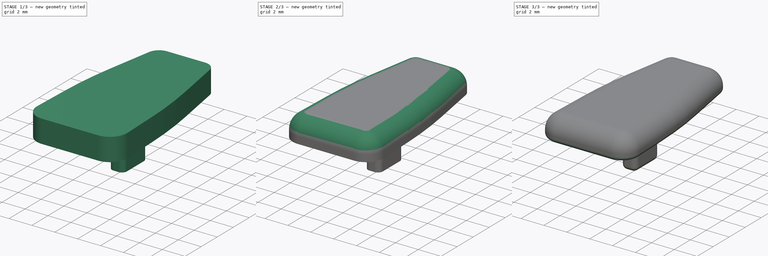
[diagram: build sequence overview — one tinted view per stage of 3, left to right]
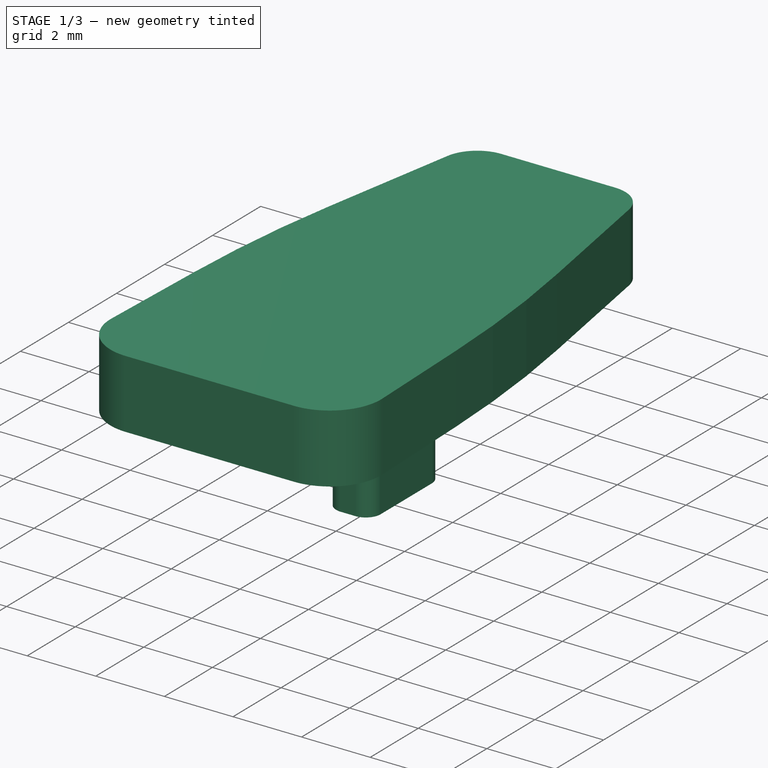
[diagram: stage 1 of 3 — iso view after this stage's code; geometry added in this stage tinted green]
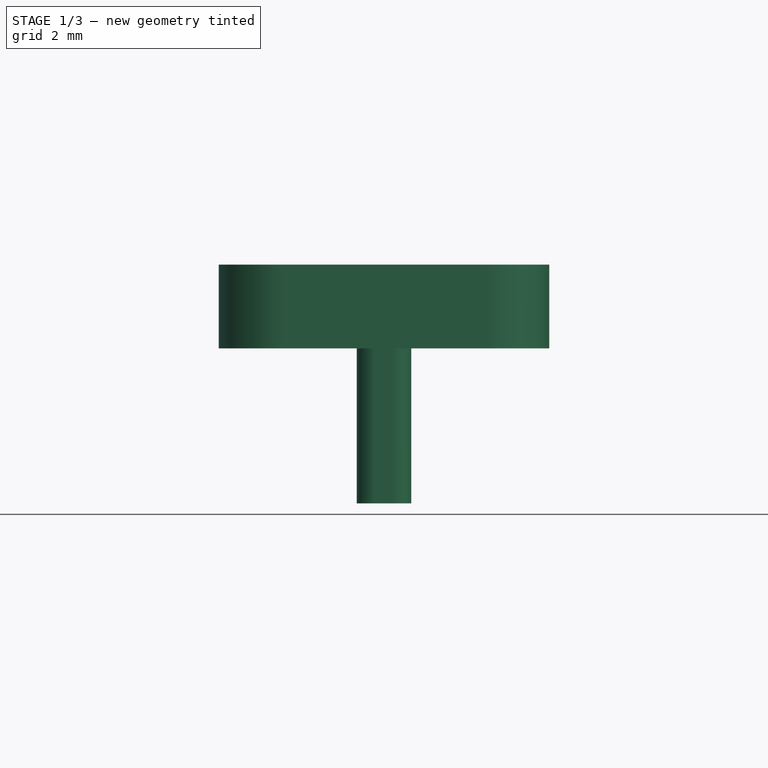
[diagram: stage 1 of 3 — front view after this stage's code; geometry added in this stage tinted green]
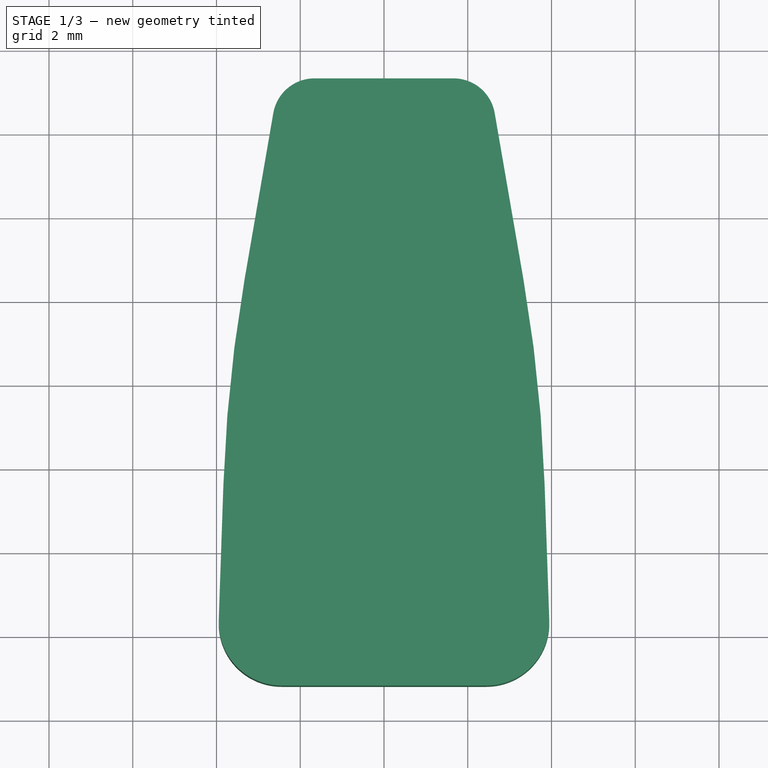
[diagram: stage 1 of 3 — top view after this stage's code; geometry added in this stage tinted green]
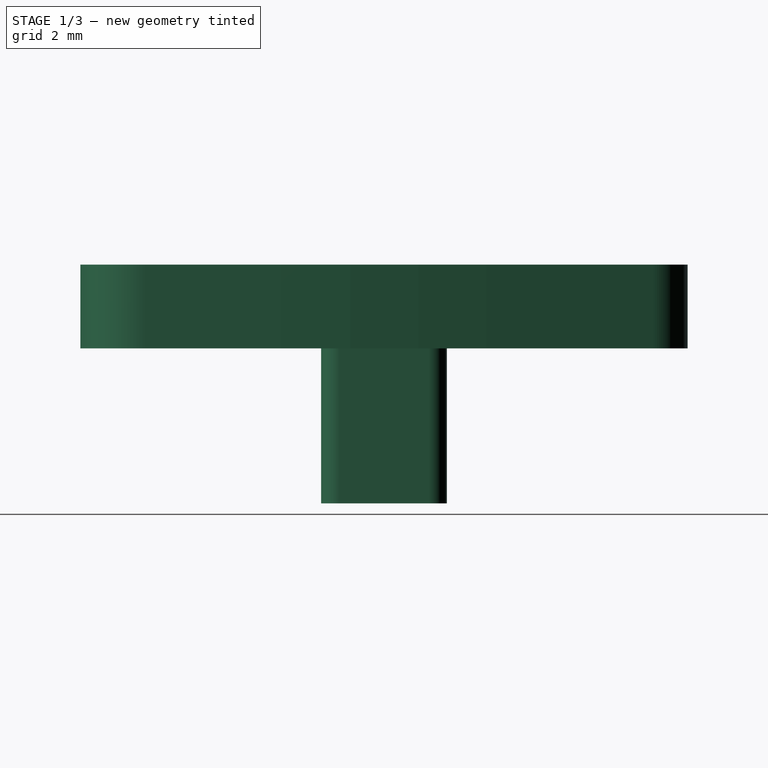
[diagram: stage 1 of 3 — right view after this stage's code; geometry added in this stage tinted green]
FCSTD DOCUMENT  (FreeCAD 0.21R33771 (Git))
Label: GlassNoseRest
License: All rights reserved
LicenseURL: http://en.wikipedia.org/wiki/All_rights_reserved
objects: Sketcher::SketchObject×3, PartDesign::Fillet×3, PartDesign::Pad×2, PartDesign::Body×1
note: 14 computed .brp shape members not serialized (recipe doc carries the construction recipe); baked Part::Feature solids carry a one-line shape summary decoded from their .brp

FEATURE [Sketcher::SketchObject] Sketch  label="Template"
  FullyConstrained = true
  MapMode = 5
  Support = -> [XY_Plane]
  sketch-geometry (43):
    g0: LineSegment StartX=-0.216667 StartY=1.5 StartZ=0 EndX=0.216667 EndY=1.5 EndZ=0
    g1: LineSegment StartX=0.65 StartY=1.06667 StartZ=0 EndX=0.65 EndY=-1.06667 EndZ=0
    g2: LineSegment StartX=0.216667 StartY=-1.5 StartZ=0 EndX=-0.216667 EndY=-1.5 EndZ=0
    g3: LineSegment StartX=-0.65 StartY=-1.06667 StartZ=0 EndX=-0.65 EndY=1.06667 EndZ=0
    g4: ArcOfCircle CenterX=-0.216667 CenterY=1.06667 CenterZ=0 NormalX=0 NormalY=0 NormalZ=1 AngleXU=0 Radius=0.433333 StartAngle=1.5708 EndAngle=3.14159
    g5: GeomPoint X=-0.65 Y=1.5 Z=0
    g6: ArcOfCircle CenterX=0.216667 CenterY=1.06667 CenterZ=0 NormalX=0 NormalY=0 NormalZ=1 AngleXU=0 Radius=0.433333 StartAngle=1e-16 EndAngle=1.5708
    g7: GeomPoint X=0.65 Y=1.5 Z=0
    g8: ArcOfCircle CenterX=0.216667 CenterY=-1.06667 CenterZ=0 NormalX=0 NormalY=0 NormalZ=1 AngleXU=0 Radius=0.433333 StartAngle=4.71239 EndAngle=6.28319
    g9: GeomPoint X=0.65 Y=-1.5 Z=0
    g10: ArcOfCircle CenterX=-0.216667 CenterY=-1.06667 CenterZ=0 NormalX=0 NormalY=0 NormalZ=1 AngleXU=0 Radius=0.433333 StartAngle=3.14159 EndAngle=4.71239
    g11: GeomPoint X=-0.65 Y=-1.5 Z=0
    g12: LineSegment StartX=-0.65 StartY=1.06667 StartZ=0 EndX=-0.216667 EndY=1.06667 EndZ=0
    g13: LineSegment StartX=-0.216667 StartY=1.06667 StartZ=0 EndX=0.216667 EndY=1.06667 EndZ=0
    g14: LineSegment StartX=0.216667 StartY=1.06667 StartZ=0 EndX=0.65 EndY=1.06667 EndZ=0
    g15: GeomPoint X=0 Y=0 Z=0
    g16: LineSegment StartX=-3.83476 StartY=-2.44657 StartZ=0 EndX=-3.94662 EndY=-5.69843 EndZ=0
    g17: LineSegment StartX=-2.44751 StartY=-7.25 StartZ=0 EndX=2.44751 EndY=-7.25 EndZ=0
    g18: LineSegment StartX=3.94662 StartY=-5.69843 StartZ=0 EndX=3.83476 EndY=-2.44657 EndZ=0
    g19: LineSegment StartX=3.33016 StartY=2.44657 StartZ=0 EndX=2.64339 EndY=6.4203 EndZ=0
    g20: LineSegment StartX=1.658 StartY=7.25 StartZ=0 EndX=-1.658 EndY=7.25 EndZ=0
    g21: LineSegment StartX=-2.64339 StartY=6.4203 StartZ=0 EndX=-3.33016 EndY=2.44657 EndZ=0
    g22: ArcOfCircle CenterX=-2.44751 CenterY=-5.75 CenterZ=0 NormalX=0 NormalY=0 NormalZ=1 AngleXU=0 Radius=1.5 StartAngle=3.10721 EndAngle=4.71239
    g23: GeomPoint X=-4 Y=-7.25 Z=0
    g24: ArcOfCircle CenterX=2.44751 CenterY=-5.75 CenterZ=0 NormalX=0 NormalY=0 NormalZ=1 AngleXU=0 Radius=1.5 StartAngle=4.71239 EndAngle=6.31757
    g25: GeomPoint X=4 Y=-7.25 Z=0
    g26: ArcOfCircle CenterX=-32.144 CenterY=-3.68427 CenterZ=0 NormalX=0 NormalY=0 NormalZ=1 AngleXU=0 Radius=36 StartAngle=0.0343872 EndAngle=0.171135
    g27: GeomPoint X=3.75 Y=0.0172778 Z=0
    g28: ArcOfCircle CenterX=32.144 CenterY=-3.68427 CenterZ=0 NormalX=0 NormalY=0 NormalZ=1 AngleXU=0 Radius=36 StartAngle=2.97046 EndAngle=3.10721
    g29: GeomPoint X=-3.75 Y=0.0172778 Z=0
    g30: ArcOfCircle CenterX=-1.658 CenterY=6.25 CenterZ=0 NormalX=0 NormalY=0 NormalZ=1 AngleXU=0 Radius=1 StartAngle=1.5708 EndAngle=2.97046
    g31: GeomPoint X=-2.5 Y=7.25 Z=0
    g32: ArcOfCircle CenterX=1.658 CenterY=6.25 CenterZ=0 NormalX=0 NormalY=0 NormalZ=1 AngleXU=0 Radius=1 StartAngle=0.171135 EndAngle=1.5708
    g33: GeomPoint X=2.5 Y=7.25 Z=0
    g34: LineSegment StartX=-0.65 StartY=-0.5 StartZ=0 EndX=0.65 EndY=-0.5 EndZ=0
    g35: LineSegment StartX=0 StartY=7.25 StartZ=0 EndX=0 EndY=1.5 EndZ=0
    g36: LineSegment StartX=0 StartY=1.5 StartZ=0 EndX=0 EndY=0.5 EndZ=0
    g37: LineSegment StartX=0 StartY=0.5 StartZ=0 EndX=0 EndY=-0.5 EndZ=0
    g38: LineSegment StartX=0 StartY=-0.5 StartZ=0 EndX=0 EndY=-1.5 EndZ=0
    g39: LineSegment StartX=0 StartY=-1.5 StartZ=0 EndX=0 EndY=-7.25 EndZ=0
    g40: LineSegment StartX=0 StartY=0 StartZ=0 EndX=-3.83476 EndY=0 EndZ=0
    g41: LineSegment StartX=-3.33016 StartY=2.44657 StartZ=0 EndX=-3.33016 EndY=0 EndZ=0
    g42: LineSegment StartX=-3.83476 StartY=-2.44657 StartZ=0 EndX=-3.83476 EndY=0 EndZ=0
  constraints (102):
    c: Horizontal(g0)
    c: Horizontal(g2)
    c: Vertical(g1)
    c: Vertical(g3)
    c: DistanceY(g11,g5) = 3
    c: DistanceX(g5,g7) = 1.3
    c: PointOnObject(g5,g0)
    c: PointOnObject(g5,g3)
    c: Tangent(g0,g4) = 1.5708
    c: Tangent(g3,g4) = 1.5708
    c: PointOnObject(g7,g0)
    c: PointOnObject(g7,g1)
    c: Tangent(g0,g6) = 1.5708
    c: Tangent(g1,g6) = 1.5708
    c: PointOnObject(g9,g1)
    c: PointOnObject(g9,g2)
    c: Tangent(g1,g8) = 1.5708
    c: Tangent(g2,g8) = 1.5708
    c: PointOnObject(g11,g2)
    c: PointOnObject(g11,g3)
    c: Tangent(g2,g10) = 1.5708
    c: Tangent(g3,g10) = 1.5708
    c: Equal(g4,g6)
    c: Equal(g6,g8)
    c: Equal(g8,g10)
    c: Coincident(g12,g3)
    c: Coincident(g12,g4)
    c: Coincident(g13,g4)
    c: Coincident(g13,g6)
    c: Coincident(g14,g6)
    c: Coincident(g14,g1)
    c: Equal(g14,g13)
    c: Symmetric(g11,g7,g15)
    c: Horizontal(g17)
    c: Horizontal(g20)
    c: DistanceX(g23,g25) = 8
    c: DistanceY(g23,g31) = 14.5
    c: DistanceX(g31,g33) = 5
    c: DistanceX(g29,g27) = 7.5
    c: PointOnObject(g23,g16)
    c: PointOnObject(g23,g17)
    c: Tangent(g16,g22) = -1.5708
    c: Tangent(g17,g22) = -1.5708
    c: PointOnObject(g25,g17)
    c: PointOnObject(g25,g18)
    c: Tangent(g17,g24) = -1.5708
    c: Tangent(g18,g24) = -1.5708
    c: PointOnObject(g27,g18)
    c: PointOnObject(g27,g19)
    c: Tangent(g18,g26) = -1.5708
    c: Tangent(g19,g26) = -1.5708
    c: PointOnObject(g29,g16)
    c: PointOnObject(g29,g21)
    c: Tangent(g16,g28) = -1.5708
    c: Tangent(g21,g28) = -1.5708
    c: PointOnObject(g31,g20)
    c: PointOnObject(g31,g21)
    c: Tangent(g20,g30) = -1.5708
    c: Tangent(g21,g30) = -1.5708
    c: PointOnObject(g33,g19)
    c: Tangent(g19,g32) = -1.5708
    c: Tangent(g20,g32) = -1.5708
    c: Equal(g26,g28)
    c: Radius(g28) = 36
    c: Equal(g22,g24)
    c: Radius(g22) = 1.5
    c: Equal(g30,g32)
    c: Radius(g32) = 1
    c: PointOnObject(g34,g3)
    c: PointOnObject(g34,g1)
    c: Horizontal(g34)
    c: Coincident(g35,g36)
    c: Vertical(g35)
    c: PointOnObject(g15,g35)
    c: Coincident(g36,g37)
    c: Vertical(g36)
    c: Coincident(g37,g38)
    c: Vertical(g37)
    c: Coincident(g38,g39)
    c: Vertical(g38)
    c: Vertical(g39)
    c: PointOnObject(g38,g2)
    c: PointOnObject(g35,g0)
    c: Equal(g38,g37)
    c: Equal(g37,g36)
    c: PointOnObject(g37,g34)
    c: Equal(g35,g39)
    c: Symmetric(g17,g17,g39)
    c: Symmetric(g20,g20,g35)
    c: Coincident(g40,g15)
    c: Horizontal(g40)
    c: Coincident(g41,g21)
    c: PointOnObject(g41,g40)
    c: Vertical(g41)
    c: Coincident(g42,g16)
    c: Vertical(g42)
    c: Coincident(g40,g42)
    c: Equal(g41,g42)
    c: Equal(g21,g19)
    c: Equal(g18,g16)
    c: PointOnObject(g33,g20)
    c: Coincident(g-1,g15)
FEATURE [Sketcher::SketchObject] Sketch001
  ExternalGeometry = -> [Sketch]
  FullyConstrained = true
  MapMode = 5
  Support = -> [XY_Plane]
  sketch-geometry (8):
    g0: ArcOfCircle CenterX=-0.216667 CenterY=1.06667 CenterZ=0 NormalX=0 NormalY=0 NormalZ=1 AngleXU=0 Radius=0.433333 StartAngle=1.5708 EndAngle=3.14159
    g1: ArcOfCircle CenterX=0.216667 CenterY=1.06667 CenterZ=0 NormalX=0 NormalY=0 NormalZ=1 AngleXU=0 Radius=0.433333 StartAngle=1.1e-15 EndAngle=1.5708
    g2: ArcOfCircle CenterX=0.216667 CenterY=-1.06667 CenterZ=0 NormalX=0 NormalY=0 NormalZ=1 AngleXU=0 Radius=0.433333 StartAngle=4.71239 EndAngle=6.28319
    g3: ArcOfCircle CenterX=-0.216667 CenterY=-1.06667 CenterZ=0 NormalX=0 NormalY=0 NormalZ=1 AngleXU=0 Radius=0.433333 StartAngle=3.14159 EndAngle=4.71239
    g4: LineSegment StartX=-0.216667 StartY=1.5 StartZ=0 EndX=0.216667 EndY=1.5 EndZ=0
    g5: LineSegment StartX=-0.65 StartY=1.06667 StartZ=0 EndX=-0.65 EndY=-1.06667 EndZ=0
    g6: LineSegment StartX=0.65 StartY=1.06667 StartZ=0 EndX=0.65 EndY=-1.06667 EndZ=0
    g7: LineSegment StartX=0.216667 StartY=-1.5 StartZ=0 EndX=-0.216667 EndY=-1.5 EndZ=0
  constraints (20):
    c: Coincident(g0,g-4)
    c: Coincident(g0,g-4)
    c: Coincident(g1,g-3)
    c: Coincident(g1,g-3)
    c: Coincident(g2,g-6)
    c: Coincident(g2,g-6)
    c: Coincident(g3,g-5)
    c: Coincident(g3,g-5)
    c: Equal(g3,g-5)
    c: Equal(g2,g-6)
    c: Equal(g1,g-3)
    c: Equal(g0,g-4)
    c: Coincident(g4,g0)
    c: Coincident(g4,g1)
    c: Coincident(g5,g0)
    c: Coincident(g5,g3)
    c: Coincident(g6,g1)
    c: Coincident(g6,g2)
    c: Coincident(g7,g2)
    c: Coincident(g7,g3)
FEATURE [PartDesign::Pad] Pad
  Direction = (0,0,1)
  Length = 3.7
  Length2 = 10
  Profile = -> Sketch001
  ReferenceAxis = -> Sketch001 [N_Axis]
  Type = 0
FEATURE [Sketcher::SketchObject] Sketch002
  AttachmentOffset = pos=(0,0,3.7) rot=(0,0,1;0rad)
  ExternalGeometry = -> [Sketch]
  FullyConstrained = true
  MapMode = 5
  Placement = pos=(0,0,3.7) rot=(0,0,1;0rad)
  Support = -> [XY_Plane]
  expr: .AttachmentOffset.Base.z = <<Sketch001>>.AttachmentOffset.Base.z + <<Pad>>.Length
  sketch-geometry (12):
    g0: ArcOfCircle CenterX=-1.658 CenterY=6.25 CenterZ=0 NormalX=0 NormalY=0 NormalZ=1 AngleXU=0 Radius=1 StartAngle=1.5708 EndAngle=2.97046
    g1: ArcOfCircle CenterX=1.658 CenterY=6.25 CenterZ=0 NormalX=0 NormalY=0 NormalZ=1 AngleXU=0 Radius=1 StartAngle=0.171135 EndAngle=1.5708
    g2: ArcOfCircle CenterX=-32.144 CenterY=-3.68427 CenterZ=0 NormalX=0 NormalY=0 NormalZ=1 AngleXU=0 Radius=36 StartAngle=0.0343872 EndAngle=0.171135
    g3: ArcOfCircle CenterX=32.144 CenterY=-3.68427 CenterZ=0 NormalX=0 NormalY=0 NormalZ=1 AngleXU=0 Radius=36 StartAngle=2.97046 EndAngle=3.10721
    g4: ArcOfCircle CenterX=-2.44751 CenterY=-5.75 CenterZ=0 NormalX=0 NormalY=0 NormalZ=1 AngleXU=0 Radius=1.5 StartAngle=3.10721 EndAngle=4.71239
    g5: ArcOfCircle CenterX=2.44751 CenterY=-5.75 CenterZ=0 NormalX=0 NormalY=0 NormalZ=1 AngleXU=0 Radius=1.5 StartAngle=4.71239 EndAngle=6.31757
    g6: LineSegment StartX=-1.658 StartY=7.25 StartZ=0 EndX=1.658 EndY=7.25 EndZ=0
    g7: LineSegment StartX=2.64339 StartY=6.4203 StartZ=0 EndX=3.33016 EndY=2.44657 EndZ=0
    g8: LineSegment StartX=3.83476 StartY=-2.44657 StartZ=0 EndX=3.94662 EndY=-5.69843 EndZ=0
    g9: LineSegment StartX=2.44751 StartY=-7.25 StartZ=0 EndX=-2.44751 EndY=-7.25 EndZ=0
    g10: LineSegment StartX=-3.94662 StartY=-5.69843 StartZ=0 EndX=-3.83476 EndY=-2.44657 EndZ=0
    g11: LineSegment StartX=-3.33016 StartY=2.44657 StartZ=0 EndX=-2.64339 EndY=6.4203 EndZ=0
  constraints (30):
    c: Coincident(g0,g-3)
    c: Coincident(g0,g-3)
    c: Coincident(g1,g-4)
    c: Coincident(g1,g-4)
    c: Coincident(g2,g-5)
    c: Coincident(g2,g-5)
    c: Coincident(g3,g-8)
    c: Coincident(g3,g-8)
    c: Coincident(g4,g-7)
    c: Coincident(g4,g-7)
    c: Coincident(g5,g-6)
    c: Coincident(g5,g-6)
    c: Equal(g-6,g5)
    c: Equal(g-7,g4)
    c: Equal(g-5,g2)
    c: Equal(g-8,g3)
    c: Equal(g-3,g0)
    c: Equal(g-4,g1)
    c: Coincident(g6,g0)
    c: Coincident(g6,g1)
    c: Coincident(g7,g1)
    c: Coincident(g7,g2)
    c: Coincident(g8,g2)
    c: Coincident(g8,g5)
    c: Coincident(g9,g5)
    c: Coincident(g9,g4)
    c: Coincident(g10,g4)
    c: Coincident(g10,g3)
    c: Coincident(g11,g3)
    c: Coincident(g11,g0)
FEATURE [PartDesign::Pad] Pad001
  BaseFeature = -> Pad
  Direction = (0,0,1)
  Length = 2
  Length2 = 10
  Profile = -> Sketch002
  ReferenceAxis = -> Sketch002 [N_Axis]
  Type = 0
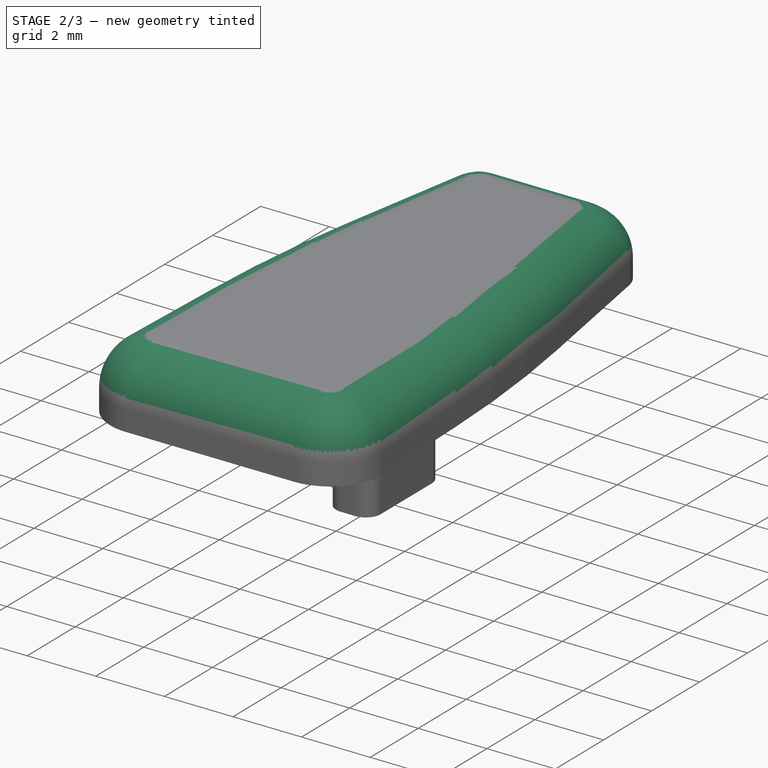
[diagram: stage 2 of 3 — iso view after this stage's code; geometry added in this stage tinted green]
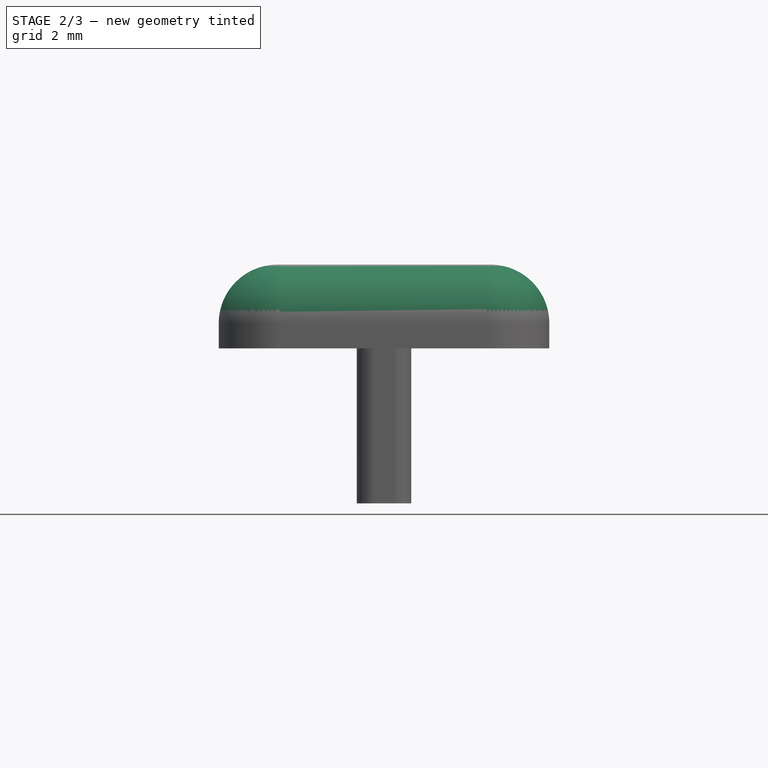
[diagram: stage 2 of 3 — front view after this stage's code; geometry added in this stage tinted green]
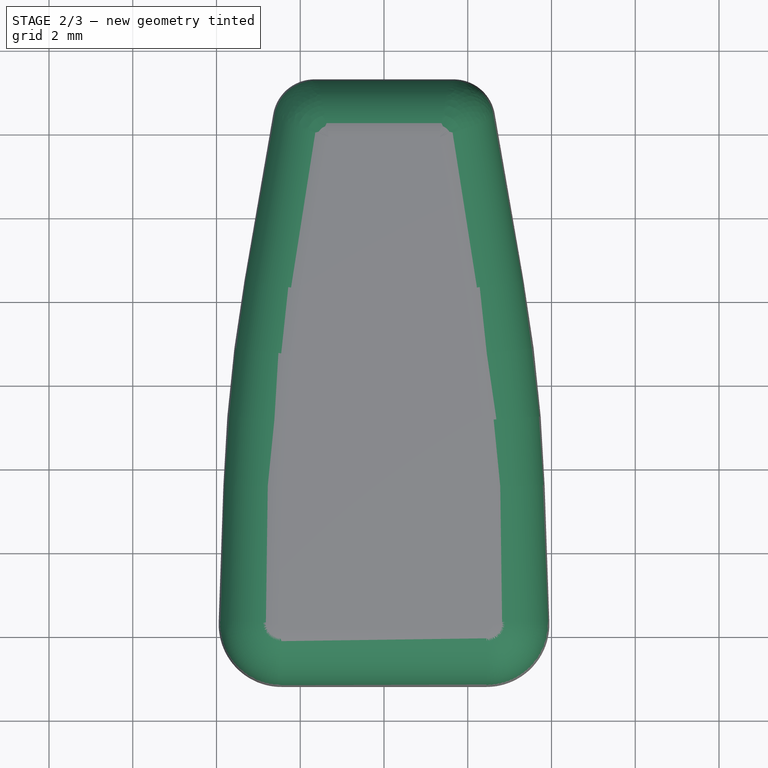
[diagram: stage 2 of 3 — top view after this stage's code; geometry added in this stage tinted green]
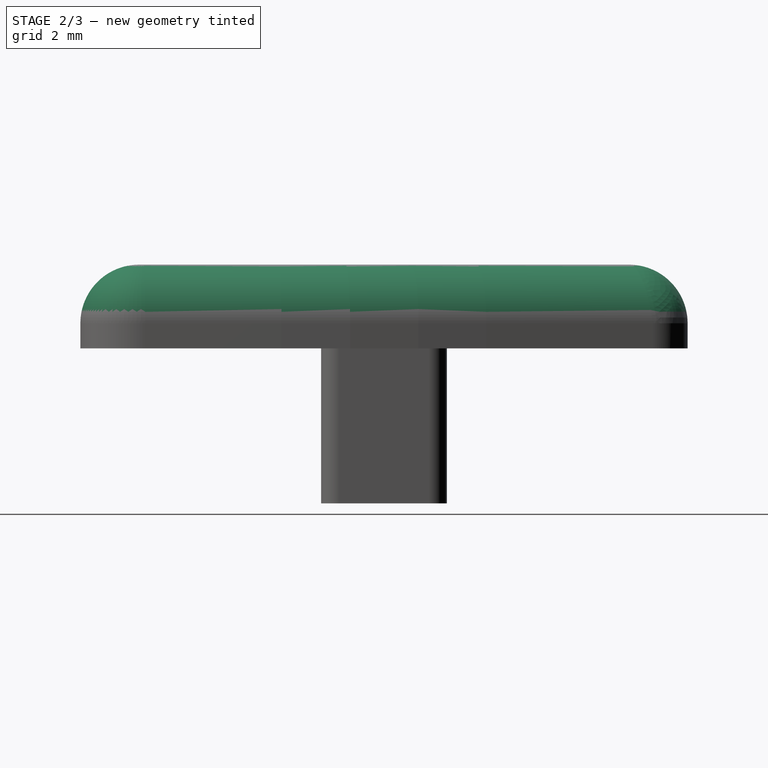
[diagram: stage 2 of 3 — right view after this stage's code; geometry added in this stage tinted green]
FEATURE [PartDesign::Fillet] Fillet
  Base = -> Pad001 [Face5]
  BaseFeature = -> Pad001
  Radius = 1.4
  SupportTransform = false
  UseAllEdges = false
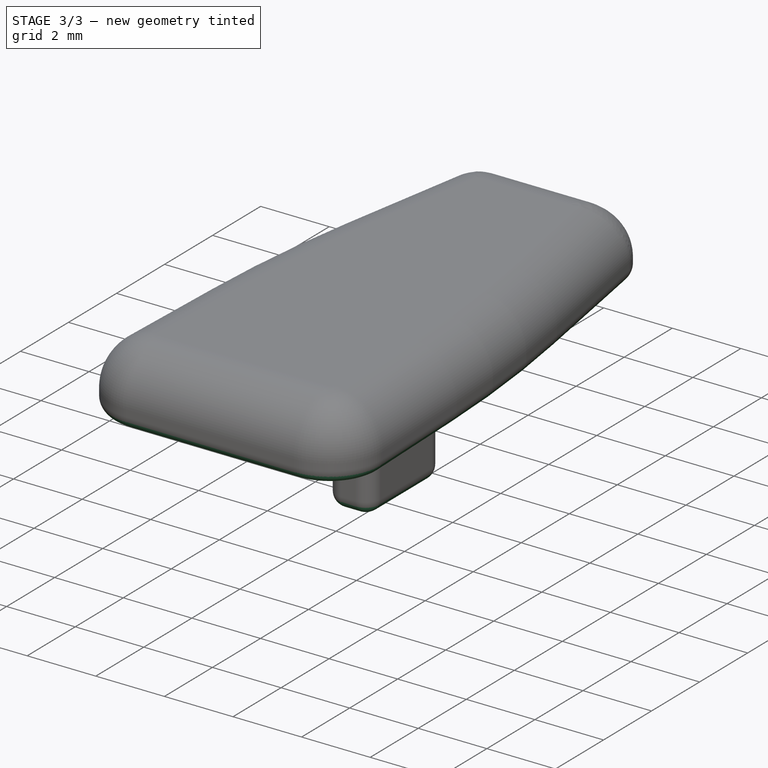
[diagram: stage 3 of 3 — iso view after this stage's code; geometry added in this stage tinted green]
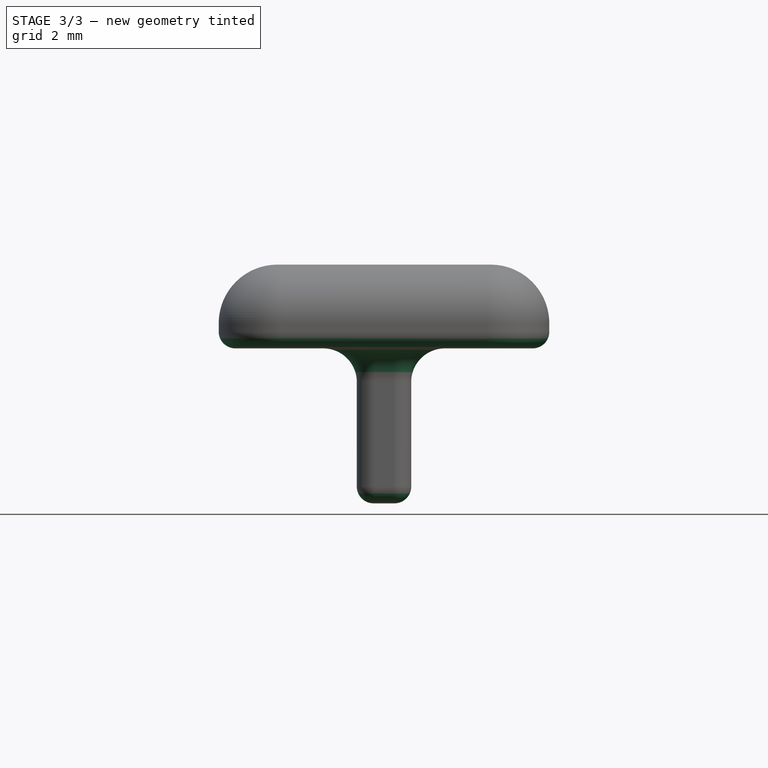
[diagram: stage 3 of 3 — front view after this stage's code; geometry added in this stage tinted green]
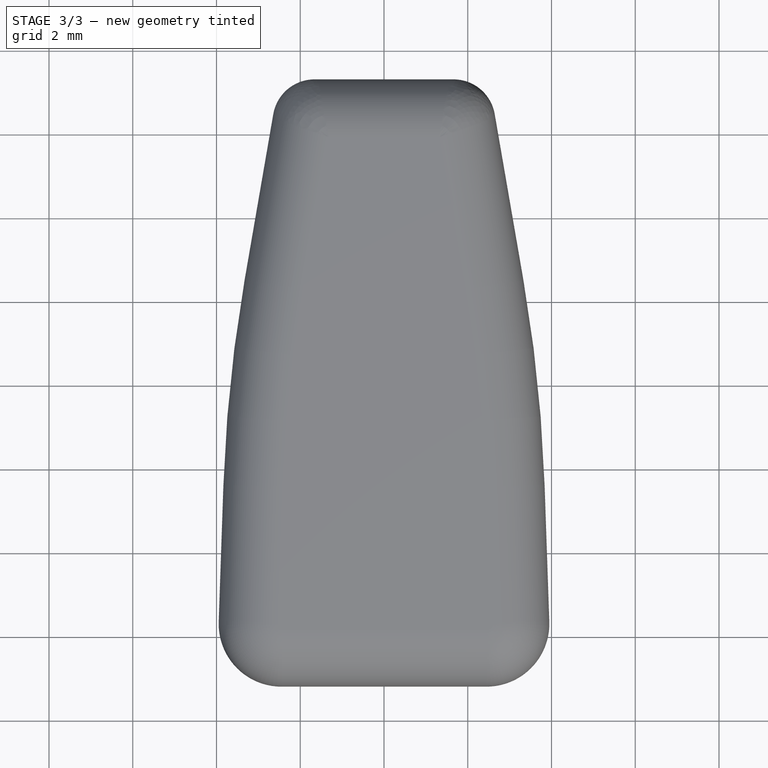
[diagram: stage 3 of 3 — top view after this stage's code; geometry added in this stage tinted green]
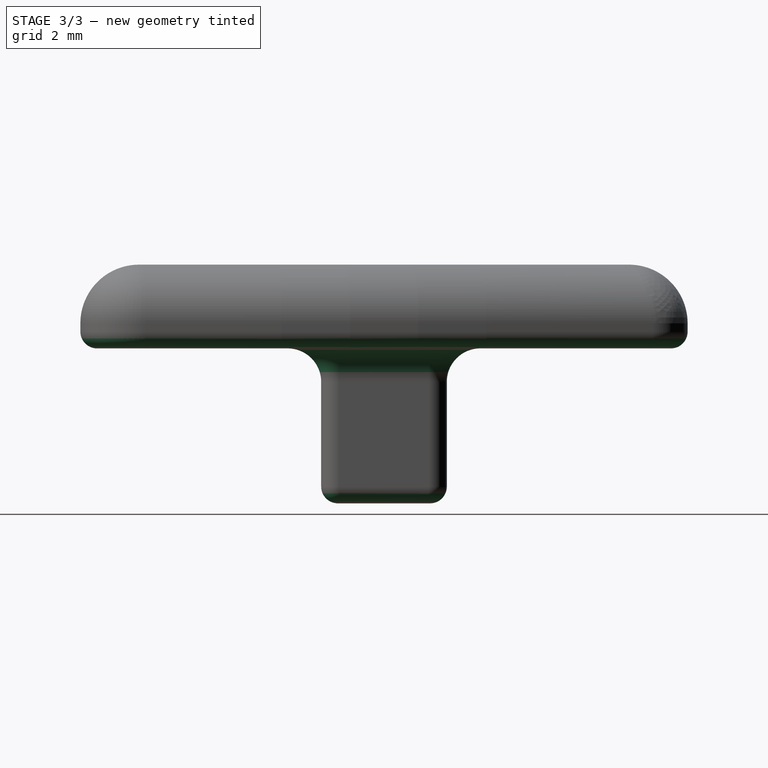
[diagram: stage 3 of 3 — right view after this stage's code; geometry added in this stage tinted green]
FEATURE [PartDesign::Fillet] Fillet001
  Base = -> Fillet [Edge24]
  BaseFeature = -> Fillet
  Radius = 0.8
  SupportTransform = false
  UseAllEdges = false
FEATURE [PartDesign::Fillet] Fillet002
  Base = -> Fillet001 [Edge62,Edge17]
  BaseFeature = -> Fillet001
  Radius = 0.4
  SupportTransform = false
  UseAllEdges = false
FEATURE [PartDesign::Body] Body
  Group = -> [Sketch,Sketch001,Pad,Sketch002,Pad001,Fillet,Fillet001,Fillet002]
  Origin = -> Origin
  Tip = -> Fillet002
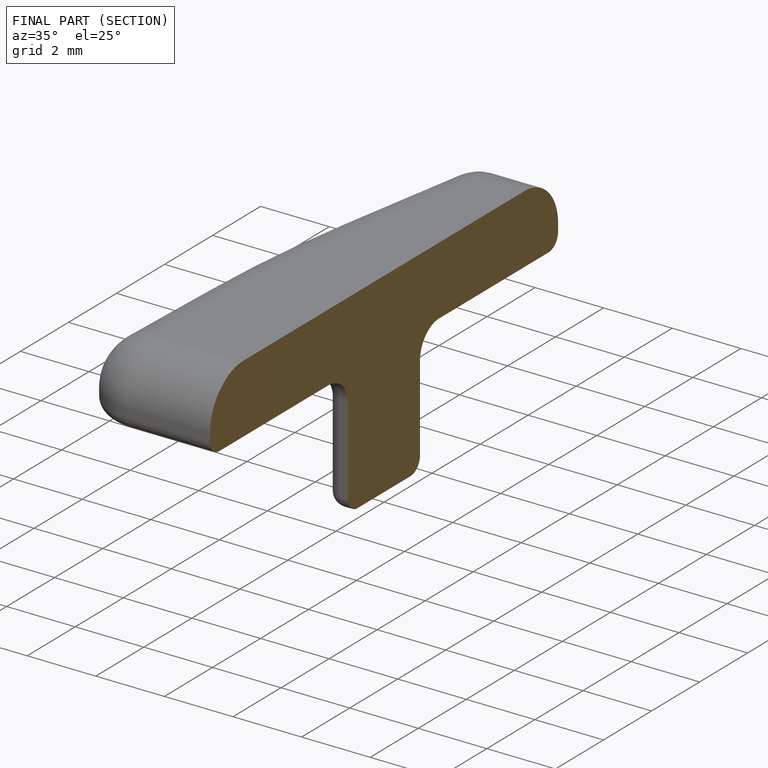
[diagram: finished part — half-section view (interior)]
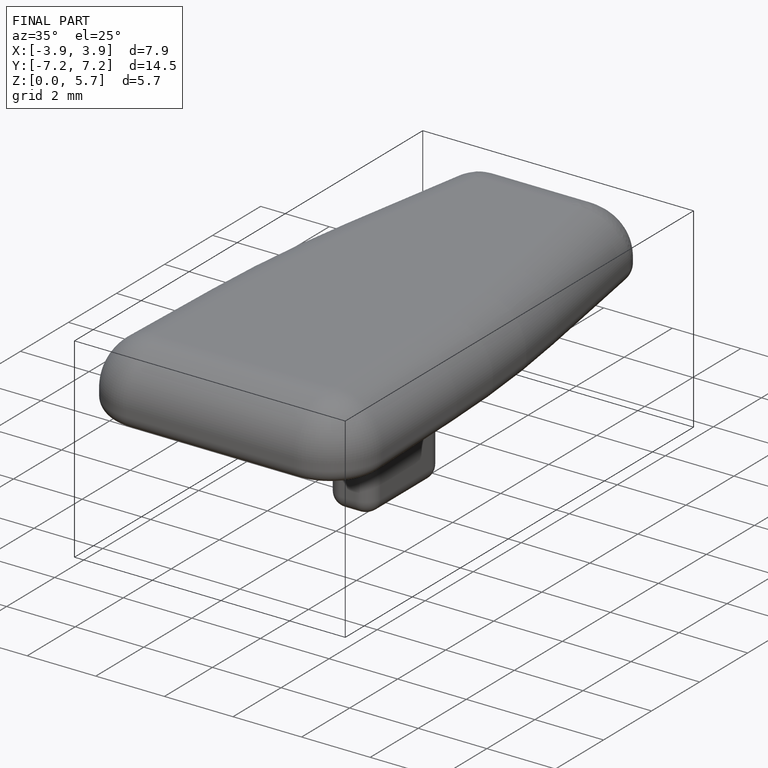
[diagram: finished part — iso view with bounding-box wireframe]
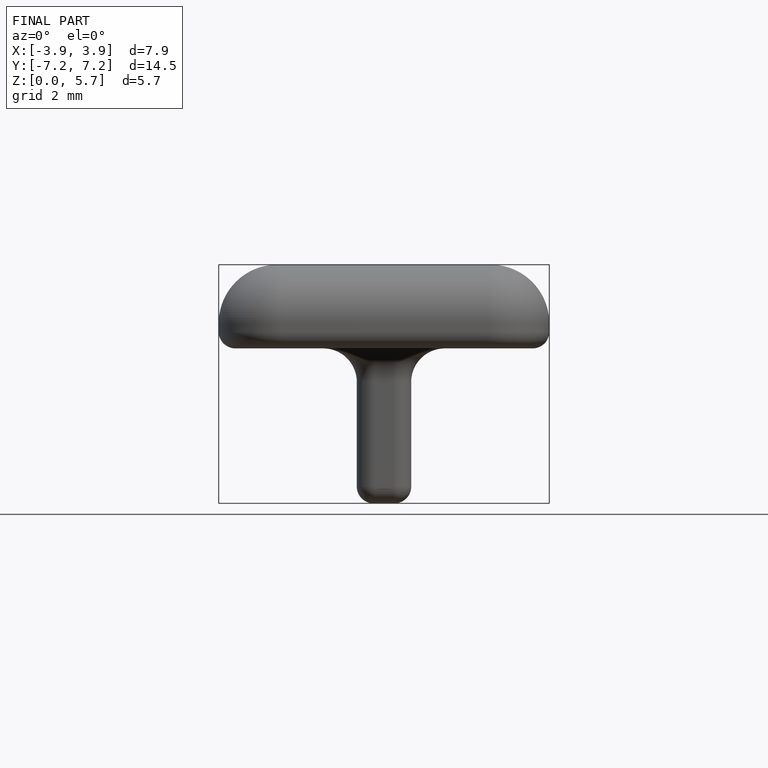
[diagram: finished part — front view with bounding-box wireframe]
